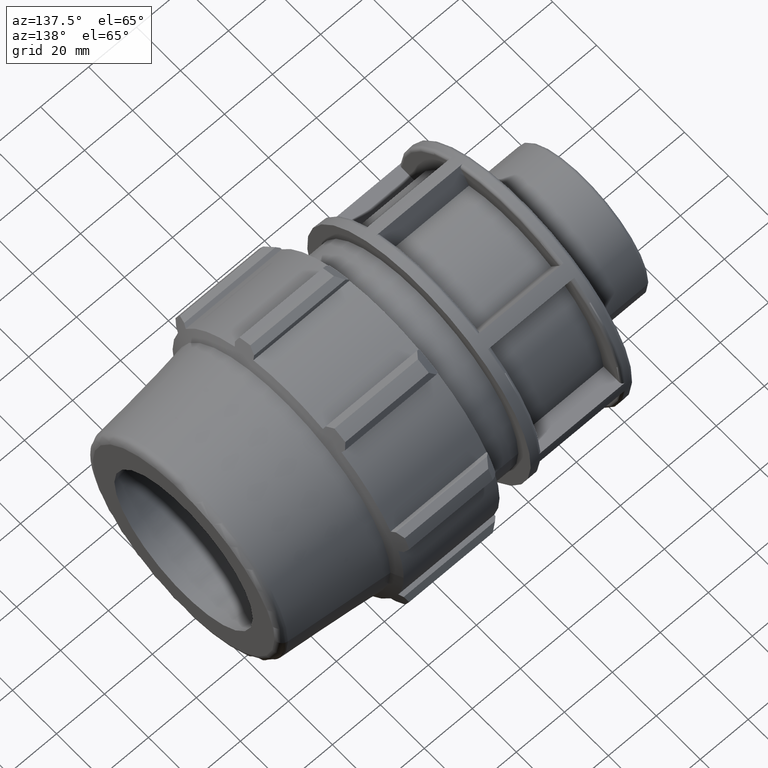
[diagram: clean part render]
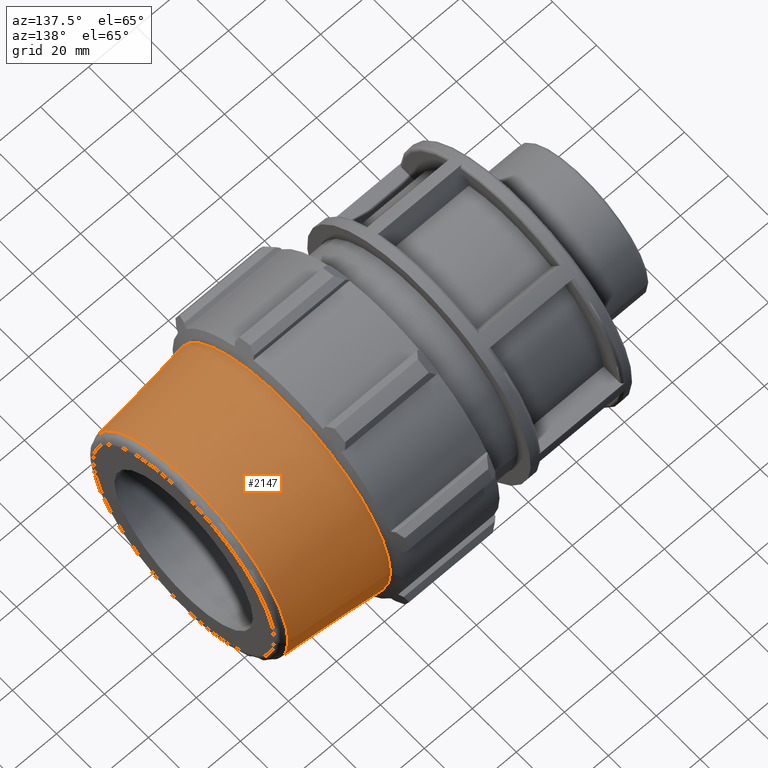
[diagram: same view with one face highlighted and labeled with its STEP entity id]
A machine part, auxiliary view. The second image highlights one B-rep face of the part: STEP entity #2147.
In plain terms, the highlighted conical surface has half-angle 6 deg.
Its self-contained STEP definition (entity closure, byte-faithful):
#56=CONICAL_SURFACE('',#2357,46.294050911171,5.99999999999997);
#479=FACE_BOUND('',#714,.T.);
#577=FACE_OUTER_BOUND('',#713,.T.);
#713=EDGE_LOOP('',(#1830));
#714=EDGE_LOOP('',(#1831));
#832=CIRCLE('',#2338,48.488101822342);
#833=CIRCLE('',#2355,44.3964712308719);
#1034=VERTEX_POINT('',#3771);
#1035=VERTEX_POINT('',#3810);
#1305=EDGE_CURVE('',#1034,#1034,#832,.T.);
#1327=EDGE_CURVE('',#1035,#1035,#833,.T.);
#1830=ORIENTED_EDGE('',*,*,#1305,.T.);
#1831=ORIENTED_EDGE('',*,*,#1327,.F.);
#2147=ADVANCED_FACE('',(#577,#479),#56,.T.);
#2338=AXIS2_PLACEMENT_3D('',#3772,#2836,#2837);
#2355=AXIS2_PLACEMENT_3D('',#3811,#2891,#2892);
#2357=AXIS2_PLACEMENT_3D('',#3814,#2895,#2896);
#2836=DIRECTION('center_axis',(1.,0.,0.));
#2837=DIRECTION('ref_axis',(0.,0.,-1.));
#2891=DIRECTION('center_axis',(1.,0.,0.));
#2892=DIRECTION('ref_axis',(0.,-1.,3.06161699786838E-17));
#2895=DIRECTION('center_axis',(-1.,0.,0.));
#2896=DIRECTION('ref_axis',(0.,1.,0.));
#3771=CARTESIAN_POINT('',(125.25,48.488101822342,0.));
#3772=CARTESIAN_POINT('Origin',(125.25,0.,0.));
#3810=CARTESIAN_POINT('',(164.179264659293,44.3964712308719,-2.71849981931624E-15));
#3811=CARTESIAN_POINT('Origin',(164.179264659293,0.,-6.7962495482906E-15));
#3814=CARTESIAN_POINT('Origin',(146.125,0.,0.));